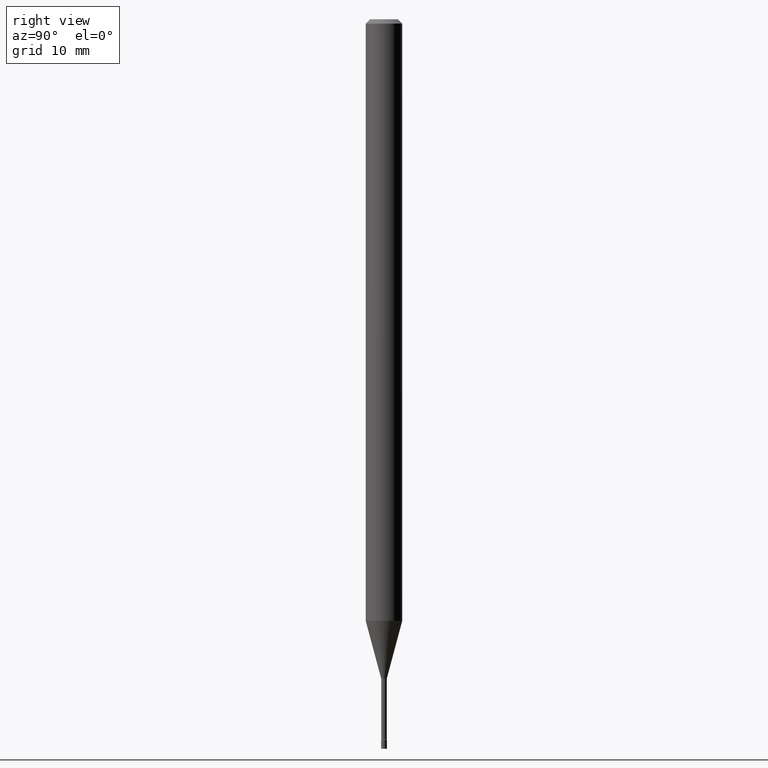
[diagram: clean part render]
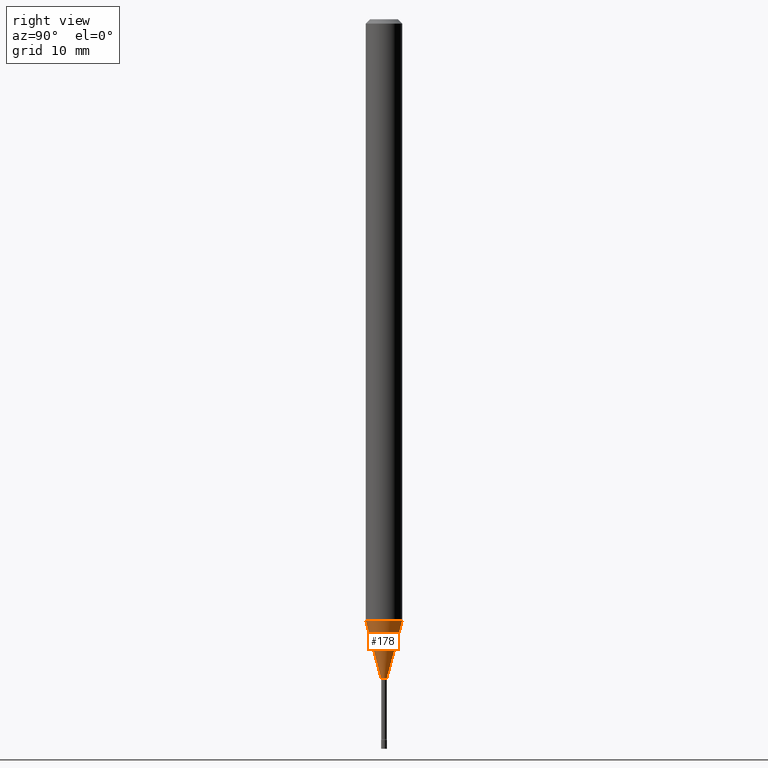
[diagram: same view with one face highlighted and labeled with its STEP entity id]
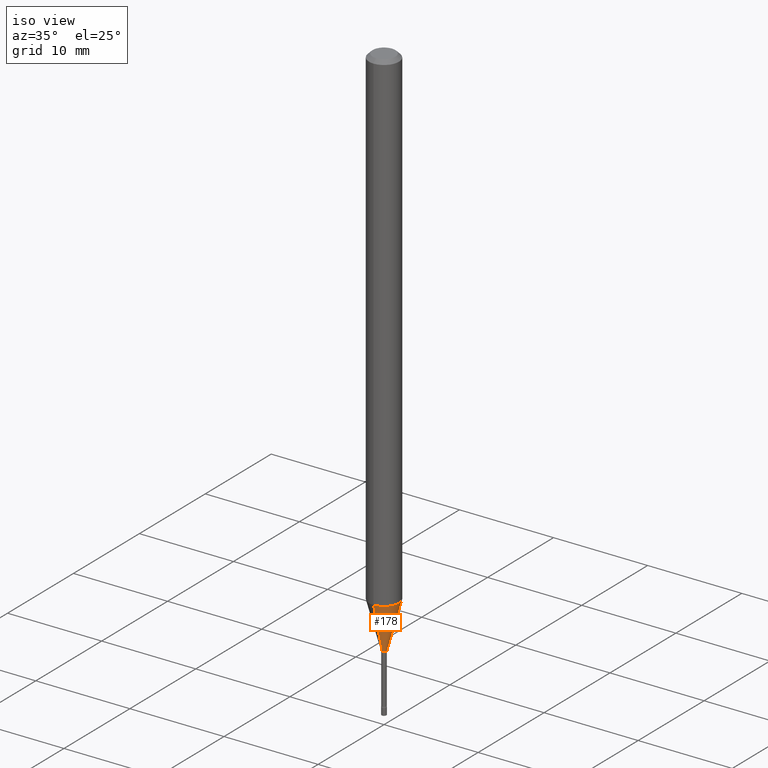
[diagram: same view with one face highlighted and labeled with its STEP entity id]
A machine part, right view. The second image highlights one B-rep face of the part: STEP entity #178.
A second angle (iso view) of the same face is appended — the face is thin or edge-on in the first view.
In plain terms, the highlighted conical surface has half-angle 15 deg.
Its self-contained STEP definition (entity closure, byte-faithful):
#27 = CARTESIAN_POINT ( 'NONE',  ( -6.920892941964220806E-17, -0.009911112605671861323, -2.258092501787273498 ) ) ;
#33 = VERTEX_POINT ( 'NONE', #338 ) ;
#34 = VERTEX_POINT ( 'NONE', #209 ) ;
#43 = DIRECTION ( 'NONE',  ( -2.445441956787615872E-29, 3.491519788708568062E-15, 1.000000000000000000 ) ) ;
#57 = CARTESIAN_POINT ( 'NONE',  ( -6.920892941964220806E-17, -0.009911112605671861323, -2.258092501787273498 ) ) ;
#77 = ORIENTED_EDGE ( 'NONE', *, *, #491, .T. ) ;
#90 = AXIS2_PLACEMENT_3D ( 'NONE', #411, #43, #286 ) ;
#97 = CONICAL_SURFACE ( 'NONE', #398, 0.009911112605663977004, 0.2617993877991500740 ) ;
#101 = EDGE_CURVE ( 'NONE', #330, #34, #512, .T. ) ;
#113 = VECTOR ( 'NONE', #515, 39.37007874015748854 ) ;
#119 = DIRECTION ( 'NONE',  ( -2.445441956787615872E-29, 3.491519788708568062E-15, 1.000000000000000000 ) ) ;
#137 = DIRECTION ( 'NONE',  ( -2.445441956787615872E-29, 3.491519788708568062E-15, 1.000000000000000000 ) ) ;
#138 = DIRECTION ( 'NONE',  ( -1.807323732225328562E-15, -0.2588190451025179639, 0.9659258262890690894 ) ) ;
#168 = ORIENTED_EDGE ( 'NONE', *, *, #488, .T. ) ;
#178 = ADVANCED_FACE ( 'NONE', ( #494 ), #97, .T. ) ;
#209 = CARTESIAN_POINT ( 'NONE',  ( 4.440892098501128074E-16, 0.06249999999999279743, -2.061828102118093753 ) ) ;
#268 = CARTESIAN_POINT ( 'NONE',  ( 5.042080948603366271E-29, -7.198913619460753817E-15, -2.061828102118093309 ) ) ;
#278 = ORIENTED_EDGE ( 'NONE', *, *, #365, .F. ) ;
#286 = DIRECTION ( 'NONE',  ( -6.982962677686265922E-15, -1.000000000000000000, 0.000000000000000000 ) ) ;
#289 = VERTEX_POINT ( 'NONE', #27 ) ;
#316 = CARTESIAN_POINT ( 'NONE',  ( -4.364351673553412316E-16, -0.06250000000000720257, -2.061828102118092865 ) ) ;
#328 = ORIENTED_EDGE ( 'NONE', *, *, #101, .F. ) ;
#330 = VERTEX_POINT ( 'NONE', #316 ) ;
#338 = CARTESIAN_POINT ( 'NONE',  ( 2.572559502513586973E-16, 0.009911112605656092686, -2.258092501787273498 ) ) ;
#350 = LINE ( 'NONE', #57, #458 ) ;
#356 = EDGE_LOOP ( 'NONE', ( #168, #77, #328, #278 ) ) ;
#358 = DIRECTION ( 'NONE',  ( -6.982962677686265922E-15, -1.000000000000000000, 0.000000000000000000 ) ) ;
#365 = EDGE_CURVE ( 'NONE', #289, #330, #350, .T. ) ;
#398 = AXIS2_PLACEMENT_3D ( 'NONE', #469, #137, #358 ) ;
#406 = DIRECTION ( 'NONE',  ( -6.982962677686265922E-15, -1.000000000000000000, 4.370956789862821150E-15 ) ) ;
#411 = CARTESIAN_POINT ( 'NONE',  ( 5.522034146178111760E-29, -7.884174654724702167E-15, -2.258092501787273498 ) ) ;
#439 = AXIS2_PLACEMENT_3D ( 'NONE', #268, #119, #406 ) ;
#440 = CIRCLE ( 'NONE', #90, 0.009911112605663977004 ) ;
#458 = VECTOR ( 'NONE', #138, 39.37007874015748854 ) ;
#469 = CARTESIAN_POINT ( 'NONE',  ( 5.522034146178111760E-29, -7.884174654724702167E-15, -2.258092501787273498 ) ) ;
#478 = LINE ( 'NONE', #486, #113 ) ;
#486 = CARTESIAN_POINT ( 'NONE',  ( 7.042269065260418039E-17, 0.009911112605656092686, -2.258092501787273498 ) ) ;
#488 = EDGE_CURVE ( 'NONE', #289, #33, #440, .T. ) ;
#491 = EDGE_CURVE ( 'NONE', #33, #34, #478, .T. ) ;
#494 = FACE_OUTER_BOUND ( 'NONE', #356, .T. ) ;
#512 = CIRCLE ( 'NONE', #439, 0.06250000000000000000 ) ;
#515 = DIRECTION ( 'NONE',  ( 1.839019923739598738E-15, 0.2588190451025247363, 0.9659258262890673130 ) ) ;